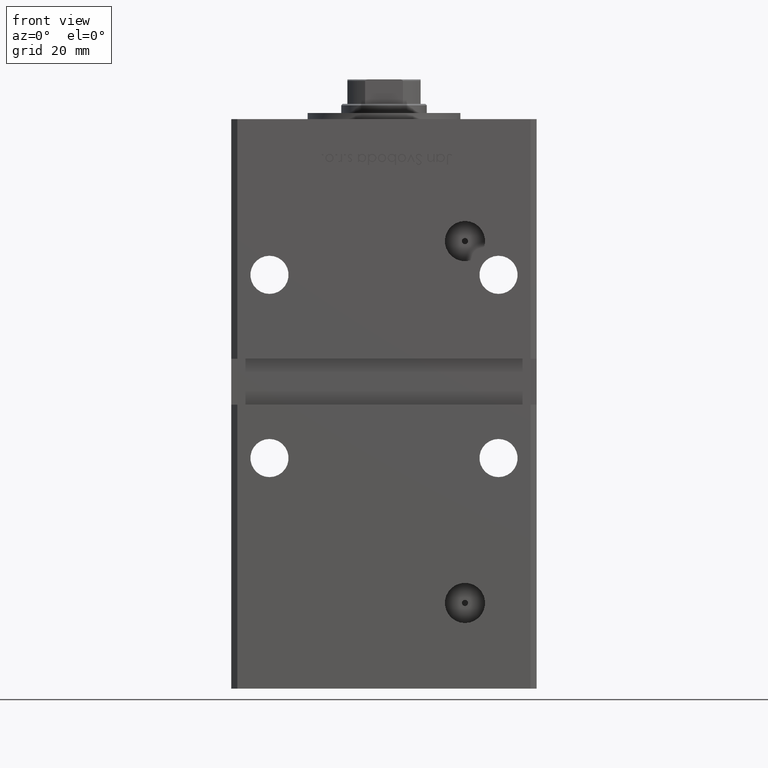
[diagram: clean part render]
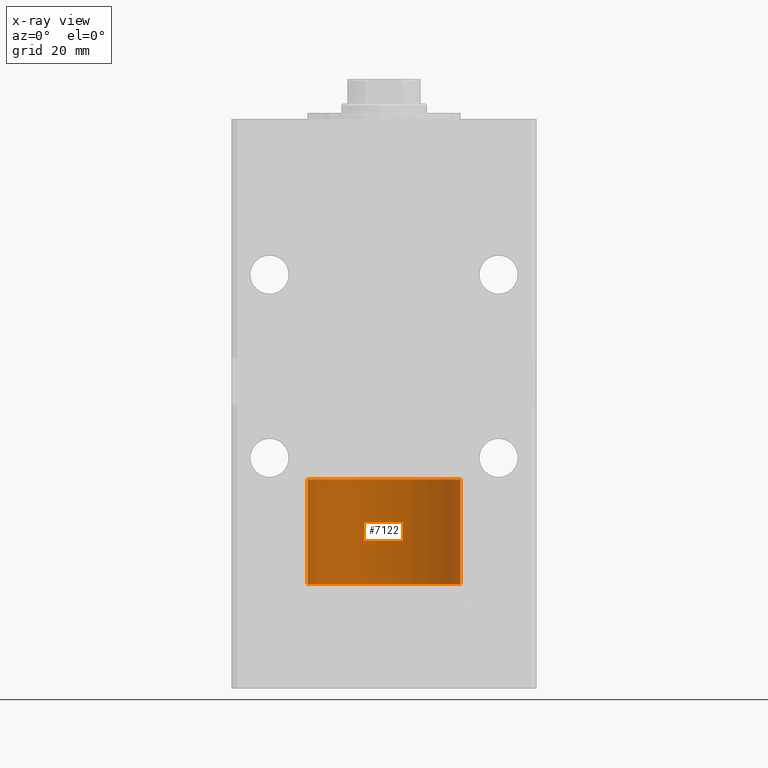
[diagram: x-ray — body ghosted, one internal face saturated and labeled with its STEP entity id]
A machine part, front view, then the same camera in x-ray: the body is ghosted and one INTERNAL B-rep face — a face not visible from any outside direction — is saturated and labeled: STEP entity #7122.
In plain terms, the highlighted cylindrical surface (partial cylindrical patch) has radius 25 mm, axis along (-0, -0, -1).
Its self-contained STEP definition (entity closure, byte-faithful):
#106 = CIRCLE ( 'NONE', #30138, 25.00000000000000000 ) ;
#607 = CYLINDRICAL_SURFACE ( 'NONE', #25957, 25.00000000000000000 ) ;
#4802 = EDGE_CURVE ( 'NONE', #38287, #19185, #7246, .T. ) ;
#6091 = CARTESIAN_POINT ( 'NONE',  ( 0.000000000000000000, 0.000000000000000000, 0.000000000000000000 ) ) ;
#6335 = AXIS2_PLACEMENT_3D ( 'NONE', #6091, #18171, #43963 ) ;
#7122 = ADVANCED_FACE ( 'NONE', ( #37405 ), #607, .T. ) ;
#7246 = LINE ( 'NONE', #15300, #25145 ) ;
#9519 = EDGE_CURVE ( 'NONE', #19185, #42867, #29447, .T. ) ;
#15300 = CARTESIAN_POINT ( 'NONE',  ( 25.00000000000000000, 3.061616997868383043E-15, 34.25000000000000000 ) ) ;
#15360 = EDGE_CURVE ( 'NONE', #40073, #42867, #49738, .T. ) ;
#17749 = DIRECTION ( 'NONE',  ( -0.000000000000000000, -0.000000000000000000, -1.000000000000000000 ) ) ;
#18171 = DIRECTION ( 'NONE',  ( 0.000000000000000000, 0.000000000000000000, 1.000000000000000000 ) ) ;
#19185 = VERTEX_POINT ( 'NONE', #39916 ) ;
#19579 = ORIENTED_EDGE ( 'NONE', *, *, #4802, .T. ) ;
#21287 = DIRECTION ( 'NONE',  ( -1.000000000000000000, 0.000000000000000000, 0.000000000000000000 ) ) ;
#22560 = EDGE_LOOP ( 'NONE', ( #31237, #19579, #44726, #39727 ) ) ;
#22887 = DIRECTION ( 'NONE',  ( 1.000000000000000000, 0.000000000000000000, 0.000000000000000000 ) ) ;
#23610 = DIRECTION ( 'NONE',  ( -0.000000000000000000, -0.000000000000000000, -1.000000000000000000 ) ) ;
#25145 = VECTOR ( 'NONE', #23610, 1000.000000000000000 ) ;
#25567 = DIRECTION ( 'NONE',  ( -0.000000000000000000, -0.000000000000000000, -1.000000000000000000 ) ) ;
#25957 = AXIS2_PLACEMENT_3D ( 'NONE', #33372, #25567, #21287 ) ;
#29447 = CIRCLE ( 'NONE', #6335, 25.00000000000000000 ) ;
#30138 = AXIS2_PLACEMENT_3D ( 'NONE', #39280, #48416, #22887 ) ;
#30281 = CARTESIAN_POINT ( 'NONE',  ( 25.00000000000000000, 3.061616997868383043E-15, 34.25000000000000000 ) ) ;
#31237 = ORIENTED_EDGE ( 'NONE', *, *, #45083, .F. ) ;
#33372 = CARTESIAN_POINT ( 'NONE',  ( 0.000000000000000000, 0.000000000000000000, 34.25000000000000000 ) ) ;
#33676 = CARTESIAN_POINT ( 'NONE',  ( -25.00000000000000000, 0.000000000000000000, 34.25000000000000000 ) ) ;
#33928 = VECTOR ( 'NONE', #17749, 1000.000000000000000 ) ;
#37405 = FACE_OUTER_BOUND ( 'NONE', #22560, .T. ) ;
#38287 = VERTEX_POINT ( 'NONE', #30281 ) ;
#39280 = CARTESIAN_POINT ( 'NONE',  ( 0.000000000000000000, 0.000000000000000000, 34.25000000000000000 ) ) ;
#39727 = ORIENTED_EDGE ( 'NONE', *, *, #15360, .F. ) ;
#39916 = CARTESIAN_POINT ( 'NONE',  ( 25.00000000000000000, 3.061616997868383043E-15, 0.000000000000000000 ) ) ;
#40073 = VERTEX_POINT ( 'NONE', #33676 ) ;
#42867 = VERTEX_POINT ( 'NONE', #50148 ) ;
#43963 = DIRECTION ( 'NONE',  ( 1.000000000000000000, 0.000000000000000000, 0.000000000000000000 ) ) ;
#44726 = ORIENTED_EDGE ( 'NONE', *, *, #9519, .T. ) ;
#45083 = EDGE_CURVE ( 'NONE', #38287, #40073, #106, .T. ) ;
#45696 = CARTESIAN_POINT ( 'NONE',  ( -25.00000000000000000, 0.000000000000000000, 34.25000000000000000 ) ) ;
#48416 = DIRECTION ( 'NONE',  ( 0.000000000000000000, 0.000000000000000000, 1.000000000000000000 ) ) ;
#49738 = LINE ( 'NONE', #45696, #33928 ) ;
#50148 = CARTESIAN_POINT ( 'NONE',  ( -25.00000000000000000, 0.000000000000000000, 0.000000000000000000 ) ) ;